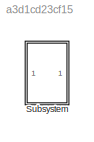
MODEL slx_a3d1cd23cf15
KIND model
CONFIG AbsTol = auto
CONFIG EnableMultiTasking = off
CONFIG FixedStep = auto
CONFIG MaxStep = auto
CONFIG MinStep = auto
CONFIG RelTol = 1e-3
CONFIG SampleTimeConstraint = Unconstrained
CONFIG Solver = VariableStepAuto
CONFIG SolverName = VariableStepAuto
CONFIG StartTime = 0.0
CONFIG StopTime = 3
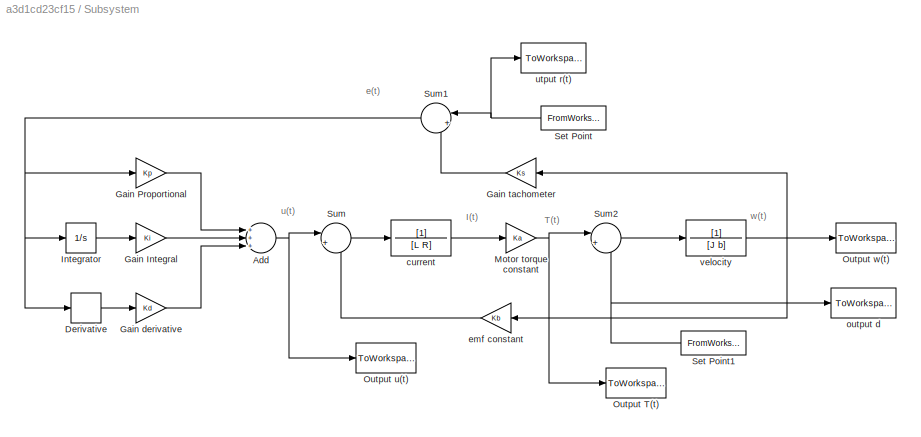
BLOCK [SubSystem] Subsystem
  Ports = []
  RequestExecContextInheritance = off
BLOCK [Sum] Subsystem/Add
  InputSameDT = off
  Inputs = +++
  OutDataTypeStr = Inherit: Inherit via internal rule
  Ports = [3, 1]
  SaturateOnIntegerOverflow = off
BLOCK [Derivative] Subsystem/Derivative
BLOCK [Gain] Subsystem/Gain Integral
  Gain = Ki
  OutDataTypeStr = Inherit: Inherit via internal rule
  ParamDataTypeStr = Inherit: Inherit via internal rule
  SaturateOnIntegerOverflow = off
BLOCK [Gain] Subsystem/Gain Proportional
  Gain = Kp
  OutDataTypeStr = Inherit: Inherit via internal rule
  ParamDataTypeStr = Inherit: Inherit via internal rule
  SaturateOnIntegerOverflow = off
BLOCK [Gain] Subsystem/Gain derivative
  Gain = Kd
  OutDataTypeStr = Inherit: Inherit via internal rule
  ParamDataTypeStr = Inherit: Inherit via internal rule
  SaturateOnIntegerOverflow = off
BLOCK [Gain] Subsystem/Gain tachometer
  Gain = Ks
  OutDataTypeStr = Inherit: Inherit via internal rule
  ParamDataTypeStr = Inherit: Inherit via internal rule
  SaturateOnIntegerOverflow = off
BLOCK [Integrator] Subsystem/Integrator
  Ports = [1, 1]
BLOCK [Gain] Subsystem/Motor torque constant
  Gain = Ka
  OutDataTypeStr = Inherit: Inherit via internal rule
  ParamDataTypeStr = Inherit: Inherit via internal rule
  SaturateOnIntegerOverflow = off
BLOCK [ToWorkspace] Subsystem/Output T(t)
  FixptAsFi = on
  MaxDataPoints = inf
  Ports = [1]
  SampleTime = -1
  Save2DSignal = 3-D array (concatenate along third dimension)
  SaveFormat = Timeseries
  VariableName = T
BLOCK [ToWorkspace] Subsystem/Output u(t)
  FixptAsFi = on
  MaxDataPoints = inf
  Ports = [1]
  SampleTime = -1
  Save2DSignal = 2-D array (concatenate along first dimension)
  SaveFormat = Timeseries
  VariableName = u
BLOCK [ToWorkspace] Subsystem/Output w(t)
  FixptAsFi = on
  MaxDataPoints = inf
  Ports = [1]
  SampleTime = -1
  SaveFormat = Timeseries
  VariableName = w
BLOCK [FromWorkspace] Subsystem/Set Point
  OutDataTypeStr = double
  OutputAfterFinalValue = Holding final value
  SampleTime = sampTime
  VariableName = [t,r]
BLOCK [FromWorkspace] Subsystem/Set Point1
  OutDataTypeStr = double
  OutputAfterFinalValue = Holding final value
  SampleTime = sampTime
  VariableName = [t,d]
BLOCK [Sum] Subsystem/Sum
  IconShape = round
  InputSameDT = off
  Inputs = |+-
  OutDataTypeStr = Inherit: Inherit via internal rule
  Ports = [2, 1]
  SaturateOnIntegerOverflow = off
BLOCK [Sum] Subsystem/Sum1
  IconShape = round
  InputSameDT = off
  Inputs = |+-
  OutDataTypeStr = Inherit: Inherit via internal rule
  Ports = [2, 1]
  SaturateOnIntegerOverflow = off
BLOCK [Sum] Subsystem/Sum2
  IconShape = round
  InputSameDT = off
  Inputs = |+-
  OutDataTypeStr = Inherit: Inherit via internal rule
  Ports = [2, 1]
  SaturateOnIntegerOverflow = off
BLOCK [TransferFcn] Subsystem/current
  ContinuousStateAttributes = 'kirchof'
  Denominator = [L R]
BLOCK [Gain] Subsystem/emf constant
  Gain = Kb
  OutDataTypeStr = Inherit: Inherit via internal rule
  ParamDataTypeStr = Inherit: Inherit via internal rule
  SaturateOnIntegerOverflow = off
BLOCK [ToWorkspace] Subsystem/output d
  FixptAsFi = on
  MaxDataPoints = inf
  Ports = [1]
  SampleTime = -1
  Save2DSignal = 2-D array (concatenate along first dimension)
  SaveFormat = Timeseries
  VariableName = d1
BLOCK [ToWorkspace] Subsystem/utput r(t)
  FixptAsFi = on
  MaxDataPoints = inf
  Ports = [1]
  SampleTime = -1
  Save2DSignal = 2-D array (concatenate along first dimension)
  SaveFormat = Timeseries
  VariableName = r1
BLOCK [TransferFcn] Subsystem/velocity 
  ContinuousStateAttributes = 'Newton'
  Denominator = [J b]
ANNOTATION Subsystem: I(t)
ANNOTATION Subsystem: T(t)
ANNOTATION Subsystem: e(t)
ANNOTATION Subsystem: u(t)
ANNOTATION Subsystem: w(t)
NET Subsystem/Add:1 -> Subsystem/Output u(t):1, Subsystem/Sum:1
LINE Subsystem/Derivative:1 -> Subsystem/Gain derivative:1
LINE Subsystem/Gain Integral:1 -> Subsystem/Add:2
LINE Subsystem/Gain Proportional:1 -> Subsystem/Add:1
LINE Subsystem/Gain derivative:1 -> Subsystem/Add:3
LINE Subsystem/Gain tachometer:1 -> Subsystem/Sum1:2
LINE Subsystem/Integrator:1 -> Subsystem/Gain Integral:1
NET Subsystem/Motor torque constant:1 -> Subsystem/Output T(t):1, Subsystem/Sum2:1
NET Subsystem/Set Point1:1 -> Subsystem/Sum2:2, Subsystem/output d:1
NET Subsystem/Set Point:1 -> Subsystem/Sum1:1, Subsystem/utput r(t):1
NET Subsystem/Sum1:1 -> Subsystem/Derivative:1, Subsystem/Gain Proportional:1, Subsystem/Integrator:1
LINE Subsystem/Sum2:1 -> Subsystem/velocity :1
LINE Subsystem/Sum:1 -> Subsystem/current:1
LINE Subsystem/current:1 -> Subsystem/Motor torque constant:1
LINE Subsystem/emf constant:1 -> Subsystem/Sum:2
NET Subsystem/velocity :1 -> Subsystem/Gain tachometer:1, Subsystem/Output w(t):1, Subsystem/emf constant:1
note: NET lines group one-source signal fan-out (src -> all destinations, sorted); 1:1 wires keep LINE
